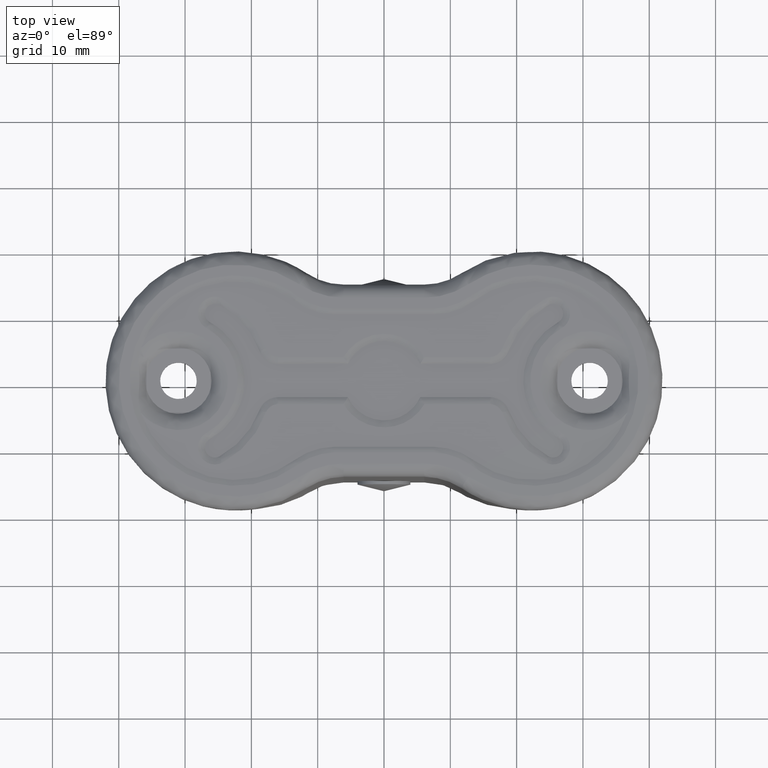
[diagram: clean part render]
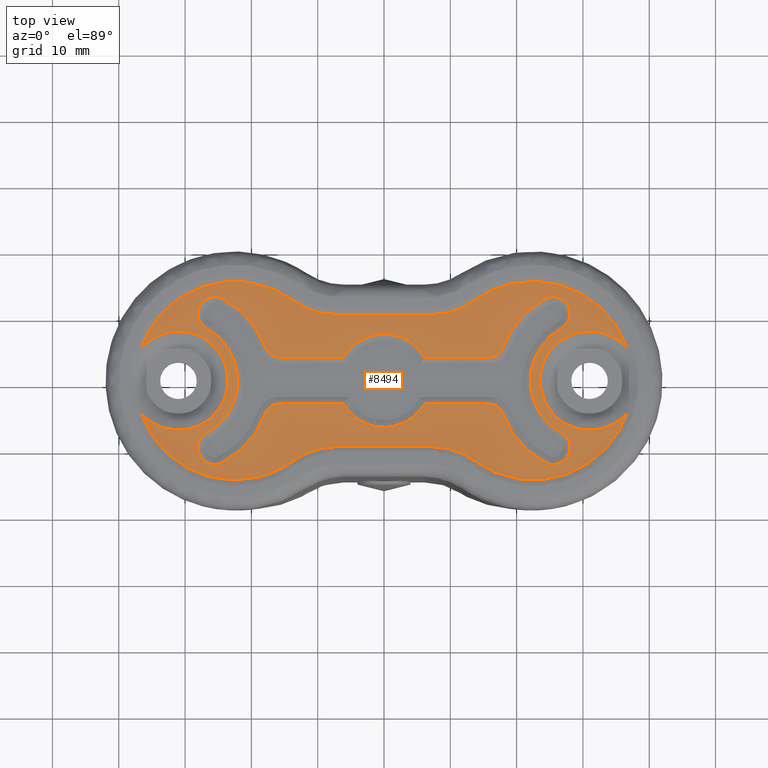
[diagram: same view with one face highlighted and labeled with its STEP entity id]
A machine part, top view. The second image highlights one B-rep face of the part: STEP entity #8494.
In plain terms, the highlighted face is a freeform B-spline surface patch.
Its self-contained STEP definition (entity closure, byte-faithful):
#3474=CARTESIAN_POINT('',(-36.701269753610802,-4.829486244434119,-0.200000000000015));
#3475=VERTEX_POINT('',#3474);
#3513=CARTESIAN_POINT('',(-30.729958398048691,7.466960005269390,-0.200000000000001));
#3514=VERTEX_POINT('',#3513);
#3515=CARTESIAN_POINT('',(-30.729958398048687,7.466960005269390,-0.200000000000001));
#3516=CARTESIAN_POINT('',(-29.543126150542619,7.424038377144377,-0.200000000000000));
#3517=CARTESIAN_POINT('',(-28.428091107418101,7.015247596263025,-0.200000000000000));
#3518=CARTESIAN_POINT('',(-23.528158581138381,5.218849127860683,-0.200000000000000));
#3519=CARTESIAN_POINT('',(-23.528158581138381,0.0,-0.200000000000000));
#3520=CARTESIAN_POINT('',(-23.528158581138381,-5.218849127860685,-0.200000000000000));
#3521=CARTESIAN_POINT('',(-28.428091107418101,-7.015247596263026,-0.200000000000000));
#3522=CARTESIAN_POINT('',(-33.328023633697811,-8.811646064665366,-0.200000000000000));
#3523=CARTESIAN_POINT('',(-36.701269753610823,-4.829486244434133,-0.200000000000000));
#3531=(BOUNDED_CURVE()B_SPLINE_CURVE(2,(#3515,#3516,#3517,#3518,#3519,#3520,#3521,#3522,#3523),.UNSPECIFIED.,.F.,.U.)B_SPLINE_CURVE_WITH_KNOTS((3,2,2,2,3),(0.183911695411073,0.250000000000000,0.500000000000000,0.750000000000000,1.0),.UNSPECIFIED.)CURVE()GEOMETRIC_REPRESENTATION_ITEM()RATIONAL_B_SPLINE_CURVE((0.929921034789470,0.952369148510450,1.0,0.819821177945867,1.0,0.819821177945867,1.0,0.819821177945867,1.0))REPRESENTATION_ITEM(''));
#3532=EDGE_CURVE('',#3514,#3475,#3531,.T.);
#3583=CARTESIAN_POINT('',(-36.701269753610802,4.829486244434119,-0.200000000000015));
#3584=VERTEX_POINT('',#3583);
#3585=CARTESIAN_POINT('',(-36.701269753610823,4.829486244434132,-0.200000000000000));
#3586=CARTESIAN_POINT('',(-34.356009548590762,7.598095656385081,-0.200000000000000));
#3587=CARTESIAN_POINT('',(-30.729958398048687,7.466960005269390,-0.200000000000001));
#3595=(BOUNDED_CURVE()B_SPLINE_CURVE(2,(#3585,#3586,#3587),.UNSPECIFIED.,.F.,.U.)B_SPLINE_CURVE_WITH_KNOTS((3,3),(0.0,0.183911695411073),.UNSPECIFIED.)CURVE()GEOMETRIC_REPRESENTATION_ITEM()RATIONAL_B_SPLINE_CURVE((1.0,0.867452029435418,0.929921034789470))REPRESENTATION_ITEM(''));
#3596=EDGE_CURVE('',#3584,#3514,#3595,.T.);
#3699=CARTESIAN_POINT('',(24.793919159252741,4.160886295636496,-0.200000000000001));
#3700=VERTEX_POINT('',#3699);
#3714=CARTESIAN_POINT('',(36.701269753610497,-4.829486244434510,-0.200000000000015));
#3715=VERTEX_POINT('',#3714);
#3716=CARTESIAN_POINT('',(36.701269753610497,-4.829486244434508,-0.200000000000000));
#3717=CARTESIAN_POINT('',(33.328023633697349,-8.811646064665382,-0.200000000000000));
#3718=CARTESIAN_POINT('',(28.428091107417860,-7.015247596262940,-0.200000000000000));
#3719=CARTESIAN_POINT('',(23.528158581138381,-5.218849127860497,-0.200000000000000));
#3720=CARTESIAN_POINT('',(23.528158581138381,0.0,-0.200000000000000));
#3721=CARTESIAN_POINT('',(23.528158581138388,2.272968216675544,-0.200000000000000));
#3722=CARTESIAN_POINT('',(24.793919159252745,4.160886295636496,-0.200000000000001));
#3730=(BOUNDED_CURVE()B_SPLINE_CURVE(2,(#3716,#3717,#3718,#3719,#3720,#3721,#3722),.UNSPECIFIED.,.F.,.U.)B_SPLINE_CURVE_WITH_KNOTS((3,2,2,3),(0.0,0.250000000000000,0.500000000000000,0.621210393329997),.UNSPECIFIED.)CURVE()GEOMETRIC_REPRESENTATION_ITEM()RATIONAL_B_SPLINE_CURVE((1.0,0.819821177945877,1.0,0.819821177945877,1.0,0.912641816436337,0.909993391195439))REPRESENTATION_ITEM(''));
#3731=EDGE_CURVE('',#3715,#3700,#3730,.T.);
#3733=CARTESIAN_POINT('',(36.701269753610497,4.829486244434510,-0.200000000000015));
#3734=VERTEX_POINT('',#3733);
#3776=CARTESIAN_POINT('',(28.367256560818092,6.992644431822761,-0.200000000000001));
#3777=VERTEX_POINT('',#3776);
#3778=CARTESIAN_POINT('',(28.367256560818088,6.992644431822761,-0.200000000000001));
#3779=CARTESIAN_POINT('',(28.397624752186985,7.004078113095360,-0.200000000000000));
#3780=CARTESIAN_POINT('',(28.428091107417860,7.015247596262939,-0.200000000000000));
#3781=CARTESIAN_POINT('',(33.328023633697349,8.811646064665382,-0.200000000000000));
#3782=CARTESIAN_POINT('',(36.701269753610489,4.829486244434514,-0.200000000000000));
#3790=(BOUNDED_CURVE()B_SPLINE_CURVE(2,(#3778,#3779,#3780,#3781,#3782),.UNSPECIFIED.,.F.,.U.)B_SPLINE_CURVE_WITH_KNOTS((3,2,3),(0.748106530944642,0.750000000000000,1.0),.UNSPECIFIED.)CURVE()GEOMETRIC_REPRESENTATION_ITEM()RATIONAL_B_SPLINE_CURVE((0.997291367220198,0.998635347904039,1.0,0.819821177945877,1.0))REPRESENTATION_ITEM(''));
#3791=EDGE_CURVE('',#3777,#3734,#3790,.T.);
#3840=CARTESIAN_POINT('',(24.793919159252734,4.160886295636496,-0.200000000000001));
#3841=CARTESIAN_POINT('',(26.126972429511259,6.149173353529942,-0.200000000000000));
#3842=CARTESIAN_POINT('',(28.367256560818088,6.992644431822761,-0.200000000000001));
#3850=(BOUNDED_CURVE()B_SPLINE_CURVE(2,(#3840,#3841,#3842),.UNSPECIFIED.,.F.,.U.)B_SPLINE_CURVE_WITH_KNOTS((3,3),(0.621210393329997,0.748106530944642),.UNSPECIFIED.)CURVE()GEOMETRIC_REPRESENTATION_ITEM()RATIONAL_B_SPLINE_CURVE((0.909993391195439,0.907220733467021,0.997291367220198))REPRESENTATION_ITEM(''));
#3851=EDGE_CURVE('',#3700,#3777,#3850,.T.);
#6528=CARTESIAN_POINT('',(-15.975021000000201,-3.553565375285070,-0.200000000000000));
#6529=VERTEX_POINT('',#6528);
#6560=CARTESIAN_POINT('',(-17.802842229864648,-4.830913084909300,-0.200000000000000));
#6561=VERTEX_POINT('',#6560);
#6575=CARTESIAN_POINT('',(-15.975021000000201,-3.553565375285074,-0.200000000000000));
#6576=CARTESIAN_POINT('',(-17.335260048102903,-3.553565375285075,-0.200000000000000));
#6577=CARTESIAN_POINT('',(-17.802842229864670,-4.830913084909294,-0.200000000000000));
#6585=(BOUNDED_CURVE()B_SPLINE_CURVE(2,(#6575,#6576,#6577),.UNSPECIFIED.,.F.,.U.)CURVE()GEOMETRIC_REPRESENTATION_ITEM()QUASI_UNIFORM_CURVE()RATIONAL_B_SPLINE_CURVE((1.0,0.819679817550482,1.0))REPRESENTATION_ITEM(''));
#6586=EDGE_CURVE('',#6529,#6561,#6585,.T.);
#6610=CARTESIAN_POINT('',(-24.278729608694700,-12.342091622000440,-0.200000000000000));
#6611=VERTEX_POINT('',#6610);
#6625=CARTESIAN_POINT('',(-17.802842229864648,-4.830913084909300,-0.200000000000000));
#6626=CARTESIAN_POINT('',(-19.624564632657208,-9.807521067146721,-0.200000000000000));
#6627=CARTESIAN_POINT('',(-24.278729608694700,-12.342091622000440,-0.200000000000000));
#6635=(BOUNDED_CURVE()B_SPLINE_CURVE(2,(#6625,#6626,#6627),.UNSPECIFIED.,.F.,.U.)CURVE()GEOMETRIC_REPRESENTATION_ITEM()QUASI_UNIFORM_CURVE()RATIONAL_B_SPLINE_CURVE((1.0,0.935682532413367,1.0))REPRESENTATION_ITEM(''));
#6636=EDGE_CURVE('',#6561,#6611,#6635,.T.);
#6669=CARTESIAN_POINT('',(-6.093025326305240,-3.553565375285070,-0.200000000000000));
#6670=VERTEX_POINT('',#6669);
#6698=CARTESIAN_POINT('',(-6.093025326305240,-3.553565375285070,-0.200000000000000));
#6699=CARTESIAN_POINT('',(-15.975021000000201,-3.553565375285070,-0.200000000000000));
#6700=QUASI_UNIFORM_CURVE('',1,(#6698,#6699),.UNSPECIFIED.,.F.,.U.);
#6701=EDGE_CURVE('',#6670,#6529,#6700,.T.);
#6731=CARTESIAN_POINT('',(-26.721270416390201,-7.856918330022181,-0.200000000000000));
#6732=VERTEX_POINT('',#6731);
#6746=CARTESIAN_POINT('',(-24.278729608694700,-12.342091622000440,-0.200000000000000));
#6747=CARTESIAN_POINT('',(-25.573487598766466,-13.047192411271295,-0.200000000000000));
#6748=CARTESIAN_POINT('',(-26.831501789447440,-12.278449494601260,-0.200000000000000));
#6749=CARTESIAN_POINT('',(-28.089515980128407,-11.509706577931219,-0.200000000000000));
#6750=CARTESIAN_POINT('',(-28.052772180477149,-10.035862872149551,-0.200000000000000));
#6751=CARTESIAN_POINT('',(-28.016028380825887,-8.562019166367884,-0.200000000000000));
#6752=CARTESIAN_POINT('',(-26.721270416390201,-7.856918330022181,-0.200000000000000));
#6760=(BOUNDED_CURVE()B_SPLINE_CURVE(2,(#6746,#6747,#6748,#6749,#6750,#6751,#6752),.UNSPECIFIED.,.F.,.U.)B_SPLINE_CURVE_WITH_KNOTS((3,2,2,3),(0.0,0.333333333333333,0.666666666666667,1.0),.UNSPECIFIED.)CURVE()GEOMETRIC_REPRESENTATION_ITEM()RATIONAL_B_SPLINE_CURVE((1.0,0.866025403754560,1.0,0.866025403754560,1.0,0.866025403754560,1.0))REPRESENTATION_ITEM(''));
#6761=EDGE_CURVE('',#6611,#6732,#6760,.T.);
#6807=CARTESIAN_POINT('',(6.093025326305240,-3.553565375285070,-0.200000000000000));
#6808=VERTEX_POINT('',#6807);
#6846=CARTESIAN_POINT('',(6.093025326305248,-3.553565375285071,-0.200000000000000));
#6847=CARTESIAN_POINT('',(4.051760413159034,-7.053565375285190,-0.200000000000000));
#6848=CARTESIAN_POINT('',(0.0,-7.053565375285190,-0.200000000000000));
#6849=CARTESIAN_POINT('',(-4.051760413159032,-7.053565375285190,-0.200000000000000));
#6850=CARTESIAN_POINT('',(-6.093025326305246,-3.553565375285073,-0.200000000000000));
#6858=(BOUNDED_CURVE()B_SPLINE_CURVE(2,(#6846,#6847,#6848,#6849,#6850),.UNSPECIFIED.,.F.,.U.)B_SPLINE_CURVE_WITH_KNOTS((3,2,3),(0.0,0.500000000000000,1.0),.UNSPECIFIED.)CURVE()GEOMETRIC_REPRESENTATION_ITEM()RATIONAL_B_SPLINE_CURVE((1.0,0.867120822757498,1.0,0.867120822757498,1.0))REPRESENTATION_ITEM(''));
#6859=EDGE_CURVE('',#6808,#6670,#6858,.T.);
#6889=CARTESIAN_POINT('',(-26.721270391305701,7.856918377999451,-0.200000000000000));
#6890=VERTEX_POINT('',#6889);
#6904=CARTESIAN_POINT('',(-26.721270416390201,-7.856918330022179,-0.200000000000000));
#6905=CARTESIAN_POINT('',(-22.053565375013086,-5.314974172121217,-0.200000000000000));
#6906=CARTESIAN_POINT('',(-22.053565375285181,4.579962E-010,-0.200000000000000));
#6907=CARTESIAN_POINT('',(-22.053565375557273,5.314974173037212,-0.200000000000000));
#6908=CARTESIAN_POINT('',(-26.721270391305701,7.856918377999451,-0.200000000000000));
#6916=(BOUNDED_CURVE()B_SPLINE_CURVE(2,(#6904,#6905,#6906,#6907,#6908),.UNSPECIFIED.,.F.,.U.)B_SPLINE_CURVE_WITH_KNOTS((3,2,3),(0.0,0.500000000000000,1.0),.UNSPECIFIED.)CURVE()GEOMETRIC_REPRESENTATION_ITEM()RATIONAL_B_SPLINE_CURVE((1.0,0.859726952973727,1.0,0.859726952973727,1.0))REPRESENTATION_ITEM(''));
#6917=EDGE_CURVE('',#6732,#6890,#6916,.T.);
#6952=CARTESIAN_POINT('',(15.975020999999900,-3.553565375285070,-0.200000000000000));
#6953=VERTEX_POINT('',#6952);
#6975=CARTESIAN_POINT('',(15.975020999999900,-3.553565375285070,-0.200000000000000));
#6976=CARTESIAN_POINT('',(6.093025326305240,-3.553565375285070,-0.200000000000000));
#6977=QUASI_UNIFORM_CURVE('',1,(#6975,#6976),.UNSPECIFIED.,.F.,.U.);
#6978=EDGE_CURVE('',#6953,#6808,#6977,.T.);
#7008=CARTESIAN_POINT('',(-24.278729634648851,12.342091574496900,-0.200000000000000));
#7009=VERTEX_POINT('',#7008);
#7023=CARTESIAN_POINT('',(-26.721270391305701,7.856918377999451,-0.200000000000000));
#7024=CARTESIAN_POINT('',(-28.963857013273380,9.078188769287355,-0.200000000000000));
#7025=CARTESIAN_POINT('',(-27.742586622018319,11.320775391272919,-0.200000000000000));
#7026=CARTESIAN_POINT('',(-26.521316230763254,13.563362013258475,-0.200000000000000));
#7027=CARTESIAN_POINT('',(-24.278729634648851,12.342091574496900,-0.200000000000000));
#7035=(BOUNDED_CURVE()B_SPLINE_CURVE(2,(#7023,#7024,#7025,#7026,#7027),.UNSPECIFIED.,.F.,.U.)B_SPLINE_CURVE_WITH_KNOTS((3,2,3),(0.0,0.500000000000000,1.0),.UNSPECIFIED.)CURVE()GEOMETRIC_REPRESENTATION_ITEM()RATIONAL_B_SPLINE_CURVE((1.0,0.707106781191712,1.0,0.707106781191712,1.0))REPRESENTATION_ITEM(''));
#7036=EDGE_CURVE('',#6890,#7009,#7035,.T.);
#7090=CARTESIAN_POINT('',(17.802842232089649,-4.830913090988370,-0.200000000000000));
#7091=VERTEX_POINT('',#7090);
#7121=CARTESIAN_POINT('',(17.802842232089660,-4.830913090988368,-0.200000000000000));
#7122=CARTESIAN_POINT('',(17.335260052920137,-3.553565375285074,-0.200000000000000));
#7123=CARTESIAN_POINT('',(15.975020999999900,-3.553565375285074,-0.200000000000000));
#7131=(BOUNDED_CURVE()B_SPLINE_CURVE(2,(#7121,#7122,#7123),.UNSPECIFIED.,.F.,.U.)CURVE()GEOMETRIC_REPRESENTATION_ITEM()QUASI_UNIFORM_CURVE()RATIONAL_B_SPLINE_CURVE((1.0,0.819679816597920,1.0))REPRESENTATION_ITEM(''));
#7132=EDGE_CURVE('',#7091,#6953,#7131,.T.);
#7156=CARTESIAN_POINT('',(-17.802842232089951,4.830913090988600,-0.200000000000000));
#7157=VERTEX_POINT('',#7156);
#7171=CARTESIAN_POINT('',(-24.278729634648862,12.342091574496891,-0.200000000000000));
#7172=CARTESIAN_POINT('',(-19.624564635918727,9.807521068954797,-0.200000000000000));
#7173=CARTESIAN_POINT('',(-17.802842232089951,4.830913090988600,-0.200000000000000));
#7181=(BOUNDED_CURVE()B_SPLINE_CURVE(2,(#7171,#7172,#7173),.UNSPECIFIED.,.F.,.U.)CURVE()GEOMETRIC_REPRESENTATION_ITEM()QUASI_UNIFORM_CURVE()RATIONAL_B_SPLINE_CURVE((1.0,0.935682532493703,1.0))REPRESENTATION_ITEM(''));
#7182=EDGE_CURVE('',#7009,#7157,#7181,.T.);
#7218=CARTESIAN_POINT('',(24.278729633779250,-12.342091574023319,-0.200000000000000));
#7219=VERTEX_POINT('',#7218);
#7249=CARTESIAN_POINT('',(24.278729633779260,-12.342091574023319,-0.200000000000000));
#7250=CARTESIAN_POINT('',(19.624564635724184,-9.807521068423677,-0.200000000000000));
#7251=CARTESIAN_POINT('',(17.802842232089649,-4.830913090988370,-0.200000000000000));
#7259=(BOUNDED_CURVE()B_SPLINE_CURVE(2,(#7249,#7250,#7251),.UNSPECIFIED.,.F.,.U.)CURVE()GEOMETRIC_REPRESENTATION_ITEM()QUASI_UNIFORM_CURVE()RATIONAL_B_SPLINE_CURVE((1.0,0.935682532506129,1.0))REPRESENTATION_ITEM(''));
#7260=EDGE_CURVE('',#7219,#7091,#7259,.T.);
#7300=CARTESIAN_POINT('',(-15.975021000000201,3.553565375285300,-0.200000000000000));
#7301=VERTEX_POINT('',#7300);
#7315=CARTESIAN_POINT('',(-17.802842232089962,4.830913090988598,-0.200000000000000));
#7316=CARTESIAN_POINT('',(-17.335260052920443,3.553565375285295,-0.200000000000000));
#7317=CARTESIAN_POINT('',(-15.975021000000201,3.553565375285295,-0.200000000000000));
#7325=(BOUNDED_CURVE()B_SPLINE_CURVE(2,(#7315,#7316,#7317),.UNSPECIFIED.,.F.,.U.)CURVE()GEOMETRIC_REPRESENTATION_ITEM()QUASI_UNIFORM_CURVE()RATIONAL_B_SPLINE_CURVE((1.0,0.819679816597918,1.0))REPRESENTATION_ITEM(''));
#7326=EDGE_CURVE('',#7157,#7301,#7325,.T.);
#7368=CARTESIAN_POINT('',(26.721270391305499,-7.856918377999310,-0.200000000000000));
#7369=VERTEX_POINT('',#7368);
#7403=CARTESIAN_POINT('',(26.721270391305492,-7.856918377999318,-0.200000000000000));
#7404=CARTESIAN_POINT('',(28.016028381377282,-8.562019167270188,-0.200000000000000));
#7405=CARTESIAN_POINT('',(28.052772180499971,-10.035862873065060,-0.200000000000000));
#7406=CARTESIAN_POINT('',(28.089515979622664,-11.509706578859936,-0.200000000000000));
#7407=CARTESIAN_POINT('',(26.831501788665960,-12.278449495078799,-0.200000000000000));
#7408=CARTESIAN_POINT('',(25.573487597709253,-13.047192411297669,-0.200000000000000));
#7409=CARTESIAN_POINT('',(24.278729633779250,-12.342091574023319,-0.200000000000000));
#7417=(BOUNDED_CURVE()B_SPLINE_CURVE(2,(#7403,#7404,#7405,#7406,#7407,#7408,#7409),.UNSPECIFIED.,.F.,.U.)B_SPLINE_CURVE_WITH_KNOTS((3,2,2,3),(0.0,0.333333333333333,0.666666666666667,1.0),.UNSPECIFIED.)CURVE()GEOMETRIC_REPRESENTATION_ITEM()RATIONAL_B_SPLINE_CURVE((1.0,0.866025403754555,1.0,0.866025403754555,1.0,0.866025403754555,1.0))REPRESENTATION_ITEM(''));
#7418=EDGE_CURVE('',#7369,#7219,#7417,.T.);
#7437=CARTESIAN_POINT('',(-6.093025326305110,3.553565375285300,-0.200000000000000));
#7438=VERTEX_POINT('',#7437);
#7439=CARTESIAN_POINT('',(-15.975021000000201,3.553565375285300,-0.200000000000000));
#7440=CARTESIAN_POINT('',(-6.093025326305110,3.553565375285300,-0.200000000000000));
#7441=QUASI_UNIFORM_CURVE('',1,(#7439,#7440),.UNSPECIFIED.,.F.,.U.);
#7442=EDGE_CURVE('',#7301,#7438,#7441,.T.);
#7497=CARTESIAN_POINT('',(26.721270416390201,7.856918330022181,-0.200000000000000));
#7498=VERTEX_POINT('',#7497);
#7530=CARTESIAN_POINT('',(26.721270416390212,7.856918330022184,-0.200000000000000));
#7531=CARTESIAN_POINT('',(22.053565375013161,5.314974172121264,-0.200000000000000));
#7532=CARTESIAN_POINT('',(22.053565375285181,-4.578719E-010,-0.200000000000000));
#7533=CARTESIAN_POINT('',(22.053565375557195,-5.314974173037006,-0.200000000000000));
#7534=CARTESIAN_POINT('',(26.721270391305499,-7.856918377999310,-0.200000000000000));
#7542=(BOUNDED_CURVE()B_SPLINE_CURVE(2,(#7530,#7531,#7532,#7533,#7534),.UNSPECIFIED.,.F.,.U.)B_SPLINE_CURVE_WITH_KNOTS((3,2,3),(0.0,0.500000000000000,1.0),.UNSPECIFIED.)CURVE()GEOMETRIC_REPRESENTATION_ITEM()RATIONAL_B_SPLINE_CURVE((1.0,0.859726952973730,1.0,0.859726952973730,1.0))REPRESENTATION_ITEM(''));
#7543=EDGE_CURVE('',#7498,#7369,#7542,.T.);
#7571=CARTESIAN_POINT('',(6.093025326305110,3.553565375285300,-0.200000000000000));
#7572=VERTEX_POINT('',#7571);
#7573=CARTESIAN_POINT('',(-6.093025326305113,3.553565375285302,-0.200000000000000));
#7574=CARTESIAN_POINT('',(-4.051760413158855,7.053565375285190,-0.200000000000000));
#7575=CARTESIAN_POINT('',(0.0,7.053565375285190,-0.200000000000000));
#7576=CARTESIAN_POINT('',(4.051760413158855,7.053565375285190,-0.200000000000000));
#7577=CARTESIAN_POINT('',(6.093025326305113,3.553565375285303,-0.200000000000000));
#7585=(BOUNDED_CURVE()B_SPLINE_CURVE(2,(#7573,#7574,#7575,#7576,#7577),.UNSPECIFIED.,.F.,.U.)B_SPLINE_CURVE_WITH_KNOTS((3,2,3),(0.0,0.500000000000000,1.0),.UNSPECIFIED.)CURVE()GEOMETRIC_REPRESENTATION_ITEM()RATIONAL_B_SPLINE_CURVE((1.0,0.867120822757507,1.0,0.867120822757507,1.0))REPRESENTATION_ITEM(''));
#7586=EDGE_CURVE('',#7438,#7572,#7585,.T.);
#7651=CARTESIAN_POINT('',(24.278729608694551,12.342091622000600,-0.200000000000000));
#7652=VERTEX_POINT('',#7651);
#7686=CARTESIAN_POINT('',(24.278729608694540,12.342091622000609,-0.200000000000000));
#7687=CARTESIAN_POINT('',(25.573487598766363,13.047192411271460,-0.200000000000000));
#7688=CARTESIAN_POINT('',(26.831501789447380,12.278449494601430,-0.200000000000000));
#7689=CARTESIAN_POINT('',(28.089515980128407,11.509706577931400,-0.200000000000000));
#7690=CARTESIAN_POINT('',(28.052772180477149,10.035862872149689,-0.200000000000000));
#7691=CARTESIAN_POINT('',(28.016028380825887,8.562019166367980,-0.200000000000000));
#7692=CARTESIAN_POINT('',(26.721270416390201,7.856918330022181,-0.200000000000000));
#7700=(BOUNDED_CURVE()B_SPLINE_CURVE(2,(#7686,#7687,#7688,#7689,#7690,#7691,#7692),.UNSPECIFIED.,.F.,.U.)B_SPLINE_CURVE_WITH_KNOTS((3,2,2,3),(0.0,0.333333333333333,0.666666666666667,1.0),.UNSPECIFIED.)CURVE()GEOMETRIC_REPRESENTATION_ITEM()RATIONAL_B_SPLINE_CURVE((1.0,0.866025403754553,1.0,0.866025403754553,1.0,0.866025403754553,1.0))REPRESENTATION_ITEM(''));
#7701=EDGE_CURVE('',#7652,#7498,#7700,.T.);
#7722=CARTESIAN_POINT('',(15.975020999999900,3.553565375285300,-0.200000000000000));
#7723=VERTEX_POINT('',#7722);
#7737=CARTESIAN_POINT('',(6.093025326305110,3.553565375285300,-0.200000000000000));
#7738=CARTESIAN_POINT('',(15.975020999999900,3.553565375285300,-0.200000000000000));
#7739=QUASI_UNIFORM_CURVE('',1,(#7737,#7738),.UNSPECIFIED.,.F.,.U.);
#7740=EDGE_CURVE('',#7572,#7723,#7739,.T.);
#7768=CARTESIAN_POINT('',(17.802842051131648,4.830913146604400,-0.200000000000000));
#7769=VERTEX_POINT('',#7768);
#7799=CARTESIAN_POINT('',(17.802842051131648,4.830913146604403,-0.200000000000000));
#7800=CARTESIAN_POINT('',(19.624564630899766,9.807521066189628,-0.200000000000000));
#7801=CARTESIAN_POINT('',(24.278729608694551,12.342091622000600,-0.200000000000000));
#7809=(BOUNDED_CURVE()B_SPLINE_CURVE(2,(#7799,#7800,#7801),.UNSPECIFIED.,.F.,.U.)CURVE()GEOMETRIC_REPRESENTATION_ITEM()QUASI_UNIFORM_CURVE()RATIONAL_B_SPLINE_CURVE((1.0,0.935682532369380,1.0))REPRESENTATION_ITEM(''));
#7810=EDGE_CURVE('',#7769,#7652,#7809,.T.);
#7863=CARTESIAN_POINT('',(15.975020999999900,3.553565375285295,-0.200000000000000));
#7864=CARTESIAN_POINT('',(17.335260045494895,3.553565375285296,-0.200000000000000));
#7865=CARTESIAN_POINT('',(17.802842051131648,4.830913146604400,-0.200000000000000));
#7873=(BOUNDED_CURVE()B_SPLINE_CURVE(2,(#7863,#7864,#7865),.UNSPECIFIED.,.F.,.U.)CURVE()GEOMETRIC_REPRESENTATION_ITEM()QUASI_UNIFORM_CURVE()RATIONAL_B_SPLINE_CURVE((1.0,0.819679818066098,1.0))REPRESENTATION_ITEM(''));
#7874=EDGE_CURVE('',#7723,#7769,#7873,.T.);
#7926=CARTESIAN_POINT('',(-7.500000000000000,-10.0,-0.199999999999978));
#7927=VERTEX_POINT('',#7926);
#7941=CARTESIAN_POINT('',(-13.500000049449500,-12.000000037087000,-0.199999999999978));
#7942=VERTEX_POINT('',#7941);
#7943=CARTESIAN_POINT('',(-7.500000000000000,-10.0,-0.199999999999978));
#7944=CARTESIAN_POINT('',(-10.833333367673227,-10.0,-0.199999999999978));
#7945=CARTESIAN_POINT('',(-13.500000049449500,-12.000000037087000,-0.199999999999978));
#7953=(BOUNDED_CURVE()B_SPLINE_CURVE(2,(#7943,#7944,#7945),.UNSPECIFIED.,.F.,.U.)CURVE()GEOMETRIC_REPRESENTATION_ITEM()QUASI_UNIFORM_CURVE()RATIONAL_B_SPLINE_CURVE((1.0,0.948683297073183,1.0))REPRESENTATION_ITEM(''));
#7954=EDGE_CURVE('',#7927,#7942,#7953,.T.);
#8016=CARTESIAN_POINT('',(-13.499999925825740,11.999999944369300,-0.199999999999978));
#8017=VERTEX_POINT('',#8016);
#8051=CARTESIAN_POINT('',(-36.701269753610823,-4.829486244434128,-0.199999999999978));
#8052=CARTESIAN_POINT('',(-34.238185984508696,-12.072268449492114,-0.199999999999978));
#8053=CARTESIAN_POINT('',(-26.929149907568402,-14.331176891528720,-0.199999999999978));
#8054=CARTESIAN_POINT('',(-19.620113830628100,-16.590085333565327,-0.199999999999978));
#8055=CARTESIAN_POINT('',(-13.500000049449500,-12.000000037087000,-0.199999999999978));
#8063=(BOUNDED_CURVE()B_SPLINE_CURVE(2,(#8051,#8052,#8053,#8054,#8055),.UNSPECIFIED.,.F.,.U.)B_SPLINE_CURVE_WITH_KNOTS((3,2,3),(0.0,0.500000000000000,1.0),.UNSPECIFIED.)CURVE()GEOMETRIC_REPRESENTATION_ITEM()RATIONAL_B_SPLINE_CURVE((1.0,0.890832038391014,1.0,0.890832038391014,1.0))REPRESENTATION_ITEM(''));
#8064=EDGE_CURVE('',#3475,#7942,#8063,.T.);
#8068=CARTESIAN_POINT('',(-13.499999925825730,11.999999944369300,-0.199999999999978));
#8069=CARTESIAN_POINT('',(-19.620113698662315,16.590085333105463,-0.199999999999978));
#8070=CARTESIAN_POINT('',(-26.929149833748689,14.331176914343221,-0.199999999999978));
#8071=CARTESIAN_POINT('',(-34.238185968835054,12.072268495580975,-0.199999999999978));
#8072=CARTESIAN_POINT('',(-36.701269753610823,4.829486244434132,-0.199999999999978));
#8080=(BOUNDED_CURVE()B_SPLINE_CURVE(2,(#8068,#8069,#8070,#8071,#8072),.UNSPECIFIED.,.F.,.U.)B_SPLINE_CURVE_WITH_KNOTS((3,2,3),(0.0,0.500000000000000,1.0),.UNSPECIFIED.)CURVE()GEOMETRIC_REPRESENTATION_ITEM()RATIONAL_B_SPLINE_CURVE((1.0,0.890832037220882,1.0,0.890832037220882,1.0))REPRESENTATION_ITEM(''));
#8081=EDGE_CURVE('',#8017,#3584,#8080,.T.);
#8102=CARTESIAN_POINT('',(7.500000000000000,-9.999999999999890,-0.199999999999978));
#8103=VERTEX_POINT('',#8102);
#8117=CARTESIAN_POINT('',(7.500000000000000,-9.999999999999890,-0.199999999999978));
#8118=CARTESIAN_POINT('',(-7.500000000000000,-10.0,-0.199999999999978));
#8119=QUASI_UNIFORM_CURVE('',1,(#8117,#8118),.UNSPECIFIED.,.F.,.U.);
#8120=EDGE_CURVE('',#8103,#7927,#8119,.T.);
#8148=CARTESIAN_POINT('',(-7.500000000000000,10.0,-0.199999999999978));
#8149=VERTEX_POINT('',#8148);
#8179=CARTESIAN_POINT('',(-13.499999925825740,11.999999944369311,-0.199999999999978));
#8180=CARTESIAN_POINT('',(-10.833333281823432,10.0,-0.199999999999978));
#8181=CARTESIAN_POINT('',(-7.500000000000000,10.0,-0.199999999999978));
#8189=(BOUNDED_CURVE()B_SPLINE_CURVE(2,(#8179,#8180,#8181),.UNSPECIFIED.,.F.,.U.)CURVE()GEOMETRIC_REPRESENTATION_ITEM()QUASI_UNIFORM_CURVE()RATIONAL_B_SPLINE_CURVE((1.0,0.948683299516511,1.0))REPRESENTATION_ITEM(''));
#8190=EDGE_CURVE('',#8017,#8149,#8189,.T.);
#8214=CARTESIAN_POINT('',(13.499999925825540,-11.999999944369300,-0.199999999999978));
#8215=VERTEX_POINT('',#8214);
#8229=CARTESIAN_POINT('',(13.499999925825540,-11.999999944369300,-0.199999999999978));
#8230=CARTESIAN_POINT('',(10.833333281823339,-10.0,-0.199999999999978));
#8231=CARTESIAN_POINT('',(7.500000000000000,-9.999999999999890,-0.199999999999978));
#8239=(BOUNDED_CURVE()B_SPLINE_CURVE(2,(#8229,#8230,#8231),.UNSPECIFIED.,.F.,.U.)CURVE()GEOMETRIC_REPRESENTATION_ITEM()QUASI_UNIFORM_CURVE()RATIONAL_B_SPLINE_CURVE((1.0,0.948683299516514,1.0))REPRESENTATION_ITEM(''));
#8240=EDGE_CURVE('',#8215,#8103,#8239,.T.);
#8273=CARTESIAN_POINT('',(7.500000000000000,10.0,-0.199999999999978));
#8274=VERTEX_POINT('',#8273);
#8296=CARTESIAN_POINT('',(-7.500000000000000,10.0,-0.199999999999978));
#8297=CARTESIAN_POINT('',(7.500000000000000,10.0,-0.199999999999978));
#8298=QUASI_UNIFORM_CURVE('',1,(#8296,#8297),.UNSPECIFIED.,.F.,.U.);
#8299=EDGE_CURVE('',#8149,#8274,#8298,.T.);
#8335=CARTESIAN_POINT('',(13.499999925825559,11.999999944369319,-0.199999999999978));
#8336=VERTEX_POINT('',#8335);
#8350=CARTESIAN_POINT('',(36.701269753610497,4.829486244434510,-0.200000000000015));
#8351=CARTESIAN_POINT('',(34.238185968834713,12.072268495581243,-0.199999999999978));
#8352=CARTESIAN_POINT('',(26.929149833748401,14.331176914343310,-0.199999999999978));
#8353=CARTESIAN_POINT('',(19.620113698662088,16.590085333105367,-0.199999999999978));
#8354=CARTESIAN_POINT('',(13.499999925825559,11.999999944369319,-0.199999999999978));
#8362=(BOUNDED_CURVE()B_SPLINE_CURVE(2,(#8350,#8351,#8352,#8353,#8354),.UNSPECIFIED.,.F.,.U.)B_SPLINE_CURVE_WITH_KNOTS((3,2,3),(0.0,0.500000000000000,1.0),.UNSPECIFIED.)CURVE()GEOMETRIC_REPRESENTATION_ITEM()RATIONAL_B_SPLINE_CURVE((1.0,0.890832037220884,1.0,0.890832037220884,1.0))REPRESENTATION_ITEM(''));
#8363=EDGE_CURVE('',#3734,#8336,#8362,.T.);
#8366=CARTESIAN_POINT('',(13.499999925825540,-11.999999944369300,-0.199999999999978));
#8367=CARTESIAN_POINT('',(19.620113698662060,-16.590085333105371,-0.199999999999978));
#8368=CARTESIAN_POINT('',(26.929149833748379,-14.331176914343310,-0.199999999999978));
#8369=CARTESIAN_POINT('',(34.238185968834713,-12.072268495581257,-0.199999999999978));
#8370=CARTESIAN_POINT('',(36.701269753610497,-4.829486244434510,-0.200000000000015));
#8378=(BOUNDED_CURVE()B_SPLINE_CURVE(2,(#8366,#8367,#8368,#8369,#8370),.UNSPECIFIED.,.F.,.U.)B_SPLINE_CURVE_WITH_KNOTS((3,2,3),(0.0,0.500000000000000,1.0),.UNSPECIFIED.)CURVE()GEOMETRIC_REPRESENTATION_ITEM()RATIONAL_B_SPLINE_CURVE((1.0,0.890832037220884,1.0,0.890832037220884,1.0))REPRESENTATION_ITEM(''));
#8379=EDGE_CURVE('',#8215,#3715,#8378,.T.);
#8420=CARTESIAN_POINT('',(7.500000000000000,10.0,-0.199999999999978));
#8421=CARTESIAN_POINT('',(10.833333281823355,10.0,-0.199999999999978));
#8422=CARTESIAN_POINT('',(13.499999925825559,11.999999944369319,-0.199999999999978));
#8430=(BOUNDED_CURVE()B_SPLINE_CURVE(2,(#8420,#8421,#8422),.UNSPECIFIED.,.F.,.U.)CURVE()GEOMETRIC_REPRESENTATION_ITEM()QUASI_UNIFORM_CURVE()RATIONAL_B_SPLINE_CURVE((1.0,0.948683299516514,1.0))REPRESENTATION_ITEM(''));
#8431=EDGE_CURVE('',#8274,#8336,#8430,.T.);
#8450=CARTESIAN_POINT('',(-40.367727837829179,16.496725072626798,-0.200000000000000));
#8451=CARTESIAN_POINT('',(40.367728494098721,16.496725072626798,-0.200000000000000));
#8452=CARTESIAN_POINT('',(-40.367727837829179,-16.496725607308640,-0.200000000000000));
#8453=CARTESIAN_POINT('',(40.367728494098721,-16.496725607308640,-0.200000000000000));
#8454=B_SPLINE_SURFACE_WITH_KNOTS('',1,1,((#8450,#8452),(#8451,#8453)),.UNSPECIFIED.,.F.,.F.,.U.,(2,2),(2,2),(0.0,80.735456331927907),(0.0,32.993450679935442),.UNSPECIFIED.);
#8455=ORIENTED_EDGE('',*,*,#8379,.T.);
#8456=ORIENTED_EDGE('',*,*,#3731,.T.);
#8457=ORIENTED_EDGE('',*,*,#3851,.T.);
#8458=ORIENTED_EDGE('',*,*,#3791,.T.);
#8459=ORIENTED_EDGE('',*,*,#8363,.T.);
#8460=ORIENTED_EDGE('',*,*,#8431,.F.);
#8461=ORIENTED_EDGE('',*,*,#8299,.F.);
#8462=ORIENTED_EDGE('',*,*,#8190,.F.);
#8463=ORIENTED_EDGE('',*,*,#8081,.T.);
#8464=ORIENTED_EDGE('',*,*,#3596,.T.);
#8465=ORIENTED_EDGE('',*,*,#3532,.T.);
#8466=ORIENTED_EDGE('',*,*,#8064,.T.);
#8467=ORIENTED_EDGE('',*,*,#7954,.F.);
#8468=ORIENTED_EDGE('',*,*,#8120,.F.);
#8469=ORIENTED_EDGE('',*,*,#8240,.F.);
#8470=EDGE_LOOP('',(#8455,#8456,#8457,#8458,#8459,#8460,#8461,#8462,#8463,#8464,#8465,#8466,#8467,#8468,#8469));
#8471=FACE_OUTER_BOUND('',#8470,.T.);
#8472=ORIENTED_EDGE('',*,*,#6586,.T.);
#8473=ORIENTED_EDGE('',*,*,#6636,.T.);
#8474=ORIENTED_EDGE('',*,*,#6761,.T.);
#8475=ORIENTED_EDGE('',*,*,#6917,.T.);
#8476=ORIENTED_EDGE('',*,*,#7036,.T.);
#8477=ORIENTED_EDGE('',*,*,#7182,.T.);
#8478=ORIENTED_EDGE('',*,*,#7326,.T.);
#8479=ORIENTED_EDGE('',*,*,#7442,.T.);
#8480=ORIENTED_EDGE('',*,*,#7586,.T.);
#8481=ORIENTED_EDGE('',*,*,#7740,.T.);
#8482=ORIENTED_EDGE('',*,*,#7874,.T.);
#8483=ORIENTED_EDGE('',*,*,#7810,.T.);
#8484=ORIENTED_EDGE('',*,*,#7701,.T.);
#8485=ORIENTED_EDGE('',*,*,#7543,.T.);
#8486=ORIENTED_EDGE('',*,*,#7418,.T.);
#8487=ORIENTED_EDGE('',*,*,#7260,.T.);
#8488=ORIENTED_EDGE('',*,*,#7132,.T.);
#8489=ORIENTED_EDGE('',*,*,#6978,.T.);
#8490=ORIENTED_EDGE('',*,*,#6859,.T.);
#8491=ORIENTED_EDGE('',*,*,#6701,.T.);
#8492=EDGE_LOOP('',(#8472,#8473,#8474,#8475,#8476,#8477,#8478,#8479,#8480,#8481,#8482,#8483,#8484,#8485,#8486,#8487,#8488,#8489,#8490,#8491));
#8493=FACE_BOUND('',#8492,.T.);
#8494=ADVANCED_FACE('',(#8471,#8493),#8454,.F.);